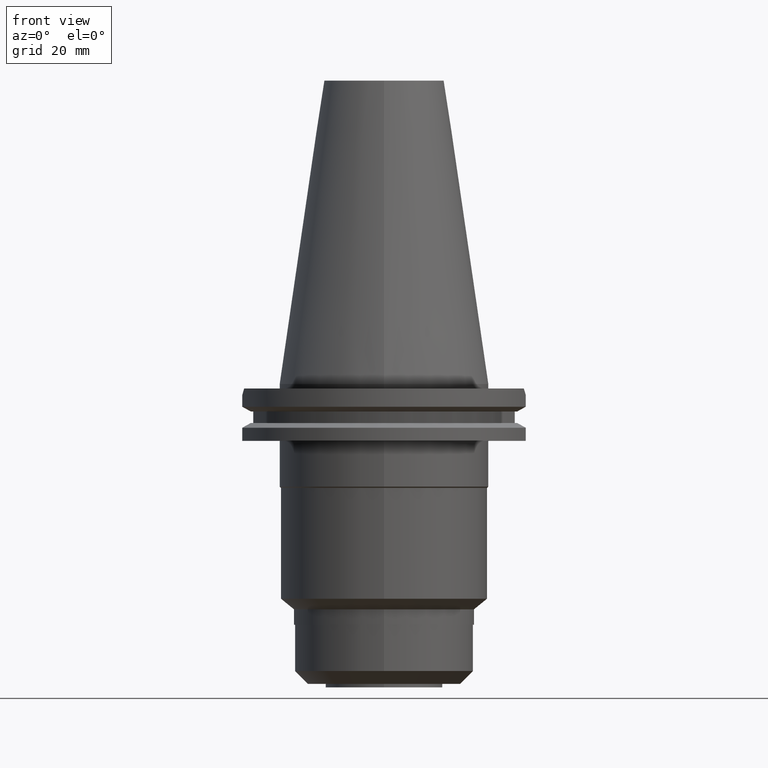
[diagram: clean part render]
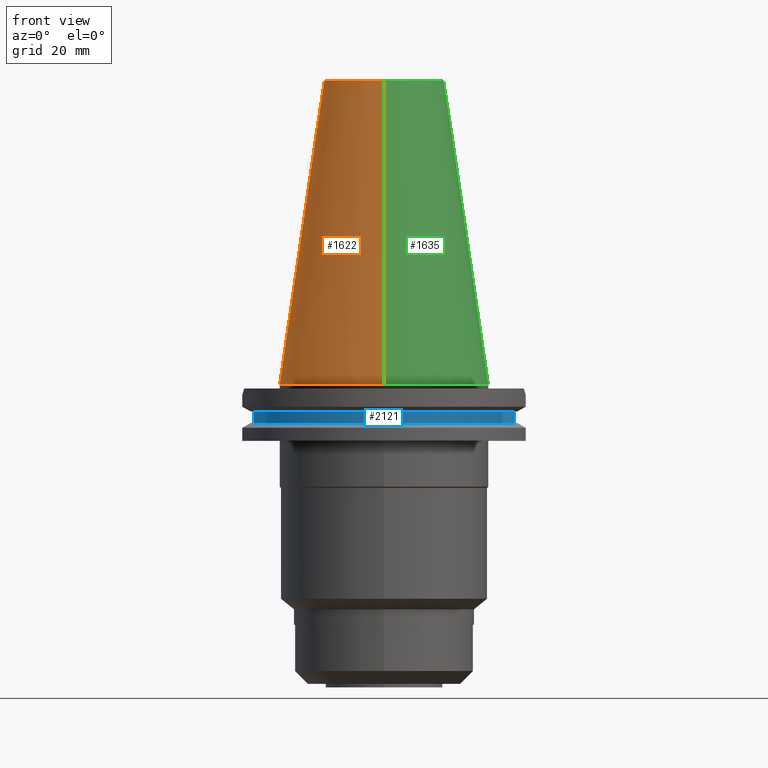
[diagram: same view with three faces highlighted in distinct colors, each labeled with its STEP entity id]
A machine part, front view with three faces highlighted in distinct colors.
Their STEP definitions:

[orange] entity #1622 — the highlighted conical surface has half-angle 8.297 deg.
#17=CARTESIAN_POINT('',(0.E0,1.846767373114E-14,1.016E2));
#18=DIRECTION('',(0.E0,0.E0,-1.E0));
#19=DIRECTION('',(0.E0,-1.E0,0.E0));
#20=AXIS2_PLACEMENT_3D('',#17,#18,#19);
#50=DIRECTION('',(0.E0,-1.443069799457E-1,-9.895329683942E-1));
#51=VECTOR('',#50,1.026746993229E2);
#52=CARTESIAN_POINT('',(0.E0,-2.010832422387E1,1.016E2));
#53=LINE('',#52,#51);
#57=CARTESIAN_POINT('',(0.E0,1.846767373114E-14,7.389644451905E-13));
#58=DIRECTION('',(0.E0,0.E0,-1.E0));
#59=DIRECTION('',(0.E0,-1.E0,0.E0));
#60=AXIS2_PLACEMENT_3D('',#57,#58,#59);
#65=DIRECTION('',(0.E0,1.443069799457E-1,-9.895329683942E-1));
#66=VECTOR('',#65,1.026746993229E2);
#67=CARTESIAN_POINT('',(0.E0,2.010832422387E1,1.016E2));
#68=LINE('',#67,#66);
#1364=CARTESIAN_POINT('',(0.E0,-2.010832422388E1,1.016E2));
#1365=CARTESIAN_POINT('',(0.E0,2.010832422388E1,1.016E2));
#1366=VERTEX_POINT('',#1364);
#1367=VERTEX_POINT('',#1365);
#1582=CARTESIAN_POINT('',(0.E0,3.4925E1,4.618527782441E-13));
#1583=VERTEX_POINT('',#1582);
#1584=CARTESIAN_POINT('',(0.E0,-3.4925E1,4.618527782441E-13));
#1585=VERTEX_POINT('',#1584);
#1608=CARTESIAN_POINT('',(0.E0,1.846767373114E-14,5.08E1));
#1609=DIRECTION('',(0.E0,0.E0,-1.E0));
#1610=DIRECTION('',(0.E0,-1.E0,0.E0));
#1611=AXIS2_PLACEMENT_3D('',#1608,#1609,#1610);
#1612=CONICAL_SURFACE('',#1611,2.751666211194E1,8.29715E0);
#1614=ORIENTED_EDGE('',*,*,#1613,.F.);
#1615=ORIENTED_EDGE('',*,*,#1595,.F.);
#1617=ORIENTED_EDGE('',*,*,#1616,.T.);
#1619=ORIENTED_EDGE('',*,*,#1618,.T.);
#1620=EDGE_LOOP('',(#1614,#1615,#1617,#1619));
#1621=FACE_OUTER_BOUND('',#1620,.F.);
#21=CIRCLE('',#20,2.010832422388E1);
#61=CIRCLE('',#60,3.4925E1);
#1595=EDGE_CURVE('',#1366,#1367,#21,.T.);
#1613=EDGE_CURVE('',#1367,#1583,#68,.T.);
#1616=EDGE_CURVE('',#1366,#1585,#53,.T.);
#1618=EDGE_CURVE('',#1585,#1583,#61,.T.);
#1622=ADVANCED_FACE('',(#1621),#1612,.T.);

[blue] entity #2121 — the highlighted cylindrical surface (partial cylindrical patch) has radius 45.645 mm, axis along (0, 0, -1).
#690=CARTESIAN_POINT('',(0.E0,2.593312061874E-14,-9.2075E0));
#691=DIRECTION('',(0.E0,0.E0,-1.E0));
#692=DIRECTION('',(9.588773428655E-1,-2.838207908862E-1,0.E0));
#693=AXIS2_PLACEMENT_3D('',#690,#691,#692);
#698=CARTESIAN_POINT('',(0.E0,2.593312061874E-14,-9.2075E0));
#699=DIRECTION('',(0.E0,0.E0,-1.E0));
#700=DIRECTION('',(0.E0,-1.E0,0.E0));
#701=AXIS2_PLACEMENT_3D('',#698,#699,#700);
#729=DIRECTION('',(0.E0,0.E0,-1.E0));
#730=VECTOR('',#729,3.84E0);
#731=CARTESIAN_POINT('',(4.376795631509E1,-1.2955E1,-9.2075E0));
#732=LINE('',#731,#730);
#736=DIRECTION('',(0.E0,0.E0,1.E0));
#737=VECTOR('',#736,3.84E0);
#738=CARTESIAN_POINT('',(-4.376795631509E1,-1.2955E1,-1.30475E1));
#739=LINE('',#738,#737);
#766=CARTESIAN_POINT('',(0.E0,2.593312061874E-14,-1.30475E1));
#767=DIRECTION('',(0.E0,0.E0,1.E0));
#768=DIRECTION('',(-9.588773428655E-1,-2.838207908862E-1,0.E0));
#769=AXIS2_PLACEMENT_3D('',#766,#767,#768);
#774=CARTESIAN_POINT('',(0.E0,2.593312061874E-14,-1.30475E1));
#775=DIRECTION('',(0.E0,0.E0,1.E0));
#776=DIRECTION('',(0.E0,-1.E0,0.E0));
#777=AXIS2_PLACEMENT_3D('',#774,#775,#776);
#1487=CARTESIAN_POINT('',(4.376795631509E1,-1.2955E1,-1.30475E1));
#1488=VERTEX_POINT('',#1487);
#1489=CARTESIAN_POINT('',(4.376795631509E1,-1.2955E1,-9.2075E0));
#1490=VERTEX_POINT('',#1489);
#1513=CARTESIAN_POINT('',(-4.376795631509E1,-1.2955E1,-9.2075E0));
#1514=VERTEX_POINT('',#1513);
#1515=CARTESIAN_POINT('',(-4.376795631509E1,-1.2955E1,-1.30475E1));
#1516=VERTEX_POINT('',#1515);
#1544=CARTESIAN_POINT('',(-2.461224688054E-14,-4.5645E1,-1.30475E1));
#1545=VERTEX_POINT('',#1544);
#1550=CARTESIAN_POINT('',(2.461224688054E-14,-4.5645E1,-9.2075E0));
#1551=VERTEX_POINT('',#1550);
#2106=CARTESIAN_POINT('',(0.E0,2.593312061874E-14,1.1176E2));
#2107=DIRECTION('',(0.E0,0.E0,-1.E0));
#2108=DIRECTION('',(0.E0,-1.E0,0.E0));
#2109=AXIS2_PLACEMENT_3D('',#2106,#2107,#2108);
#2110=CYLINDRICAL_SURFACE('',#2109,4.5645E1);
#2111=ORIENTED_EDGE('',*,*,#2022,.T.);
#2113=ORIENTED_EDGE('',*,*,#2112,.F.);
#2115=ORIENTED_EDGE('',*,*,#2114,.F.);
#2116=ORIENTED_EDGE('',*,*,#2064,.T.);
#2117=ORIENTED_EDGE('',*,*,#2098,.F.);
#2118=ORIENTED_EDGE('',*,*,#2096,.F.);
#2119=EDGE_LOOP('',(#2111,#2113,#2115,#2116,#2117,#2118));
#2120=FACE_OUTER_BOUND('',#2119,.F.);
#694=CIRCLE('',#693,4.5645E1);
#702=CIRCLE('',#701,4.5645E1);
#770=CIRCLE('',#769,4.5645E1);
#778=CIRCLE('',#777,4.5645E1);
#2022=EDGE_CURVE('',#1490,#1488,#732,.T.);
#2064=EDGE_CURVE('',#1516,#1514,#739,.T.);
#2096=EDGE_CURVE('',#1490,#1551,#694,.T.);
#2098=EDGE_CURVE('',#1551,#1514,#702,.T.);
#2112=EDGE_CURVE('',#1545,#1488,#778,.T.);
#2114=EDGE_CURVE('',#1516,#1545,#770,.T.);
#2121=ADVANCED_FACE('',(#2120),#2110,.T.);

[green] entity #1635 — the highlighted conical surface has half-angle 8.297 deg.
#26=CARTESIAN_POINT('',(0.E0,1.846767373114E-14,1.016E2));
#27=DIRECTION('',(0.E0,0.E0,-1.E0));
#28=DIRECTION('',(0.E0,1.E0,0.E0));
#29=AXIS2_PLACEMENT_3D('',#26,#27,#28);
#50=DIRECTION('',(0.E0,-1.443069799457E-1,-9.895329683942E-1));
#51=VECTOR('',#50,1.026746993229E2);
#52=CARTESIAN_POINT('',(0.E0,-2.010832422387E1,1.016E2));
#53=LINE('',#52,#51);
#65=DIRECTION('',(0.E0,1.443069799457E-1,-9.895329683942E-1));
#66=VECTOR('',#65,1.026746993229E2);
#67=CARTESIAN_POINT('',(0.E0,2.010832422387E1,1.016E2));
#68=LINE('',#67,#66);
#72=CARTESIAN_POINT('',(0.E0,1.846767373114E-14,7.389644451905E-13));
#73=DIRECTION('',(0.E0,0.E0,-1.E0));
#74=DIRECTION('',(0.E0,1.E0,0.E0));
#75=AXIS2_PLACEMENT_3D('',#72,#73,#74);
#1364=CARTESIAN_POINT('',(0.E0,-2.010832422388E1,1.016E2));
#1365=CARTESIAN_POINT('',(0.E0,2.010832422388E1,1.016E2));
#1366=VERTEX_POINT('',#1364);
#1367=VERTEX_POINT('',#1365);
#1582=CARTESIAN_POINT('',(0.E0,3.4925E1,4.618527782441E-13));
#1583=VERTEX_POINT('',#1582);
#1584=CARTESIAN_POINT('',(0.E0,-3.4925E1,4.618527782441E-13));
#1585=VERTEX_POINT('',#1584);
#1623=CARTESIAN_POINT('',(0.E0,1.846767373114E-14,5.08E1));
#1624=DIRECTION('',(0.E0,0.E0,-1.E0));
#1625=DIRECTION('',(0.E0,-1.E0,0.E0));
#1626=AXIS2_PLACEMENT_3D('',#1623,#1624,#1625);
#1627=CONICAL_SURFACE('',#1626,2.751666211194E1,8.29715E0);
#1628=ORIENTED_EDGE('',*,*,#1613,.T.);
#1630=ORIENTED_EDGE('',*,*,#1629,.T.);
#1631=ORIENTED_EDGE('',*,*,#1616,.F.);
#1632=ORIENTED_EDGE('',*,*,#1597,.F.);
#1633=EDGE_LOOP('',(#1628,#1630,#1631,#1632));
#1634=FACE_OUTER_BOUND('',#1633,.F.);
#30=CIRCLE('',#29,2.010832422388E1);
#76=CIRCLE('',#75,3.4925E1);
#1597=EDGE_CURVE('',#1367,#1366,#30,.T.);
#1613=EDGE_CURVE('',#1367,#1583,#68,.T.);
#1616=EDGE_CURVE('',#1366,#1585,#53,.T.);
#1629=EDGE_CURVE('',#1583,#1585,#76,.T.);
#1635=ADVANCED_FACE('',(#1634),#1627,.T.);